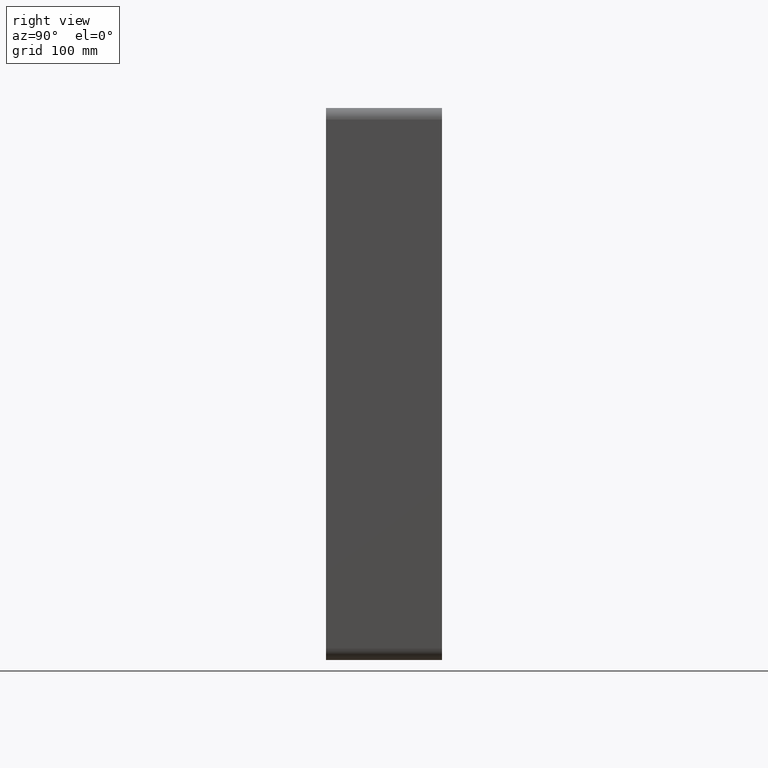
[diagram: clean part render]
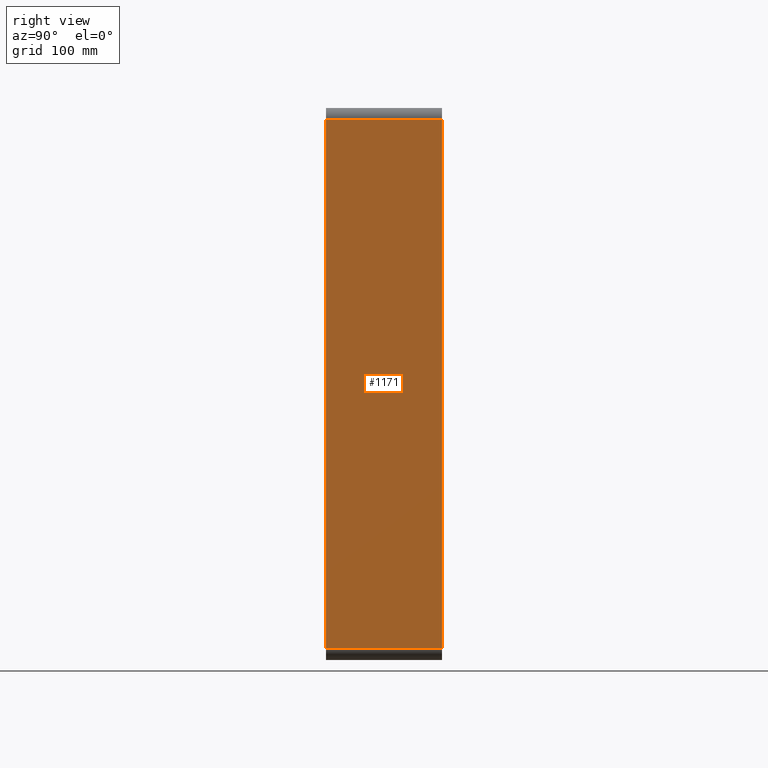
[diagram: same view with one face highlighted and labeled with its STEP entity id]
A machine part, right view. The second image highlights one B-rep face of the part: STEP entity #1171.
In plain terms, the highlighted planar face has unit normal (1, 0, 0).
Its self-contained STEP definition (entity closure, byte-faithful):
#314=CARTESIAN_POINT('',(200.75000000000003,-3.0,-227.99999999999997));
#315=VERTEX_POINT('',#314);
#323=CARTESIAN_POINT('',(200.75000000000003,-3.0,228.00000000000006));
#324=VERTEX_POINT('',#323);
#325=CARTESIAN_POINT('',(200.75000000000003,-3.0,-227.99999999999994));
#326=DIRECTION('',(0.0,0.0,1.0));
#327=VECTOR('',#326,456.0);
#328=LINE('',#325,#327);
#329=EDGE_CURVE('',#315,#324,#328,.T.);
#825=CARTESIAN_POINT('',(200.75000000000003,97.0,228.00000000000006));
#826=VERTEX_POINT('',#825);
#834=CARTESIAN_POINT('',(200.75000000000003,97.0,-227.99999999999997));
#835=VERTEX_POINT('',#834);
#836=CARTESIAN_POINT('',(200.75000000000003,97.0,228.00000000000006));
#837=DIRECTION('',(0.0,0.0,-1.0));
#838=VECTOR('',#837,456.0);
#839=LINE('',#836,#838);
#840=EDGE_CURVE('',#826,#835,#839,.T.);
#1069=CARTESIAN_POINT('',(200.75000000000003,97.0,-227.99999999999997));
#1070=DIRECTION('',(0.0,-1.0,0.0));
#1071=VECTOR('',#1070,100.0);
#1072=LINE('',#1069,#1071);
#1073=EDGE_CURVE('',#835,#315,#1072,.T.);
#1086=CARTESIAN_POINT('',(200.75000000000003,-3.0,228.00000000000006));
#1087=DIRECTION('',(0.0,1.0,0.0));
#1088=VECTOR('',#1087,100.0);
#1089=LINE('',#1086,#1088);
#1090=EDGE_CURVE('',#324,#826,#1089,.T.);
#1160=CARTESIAN_POINT('',(200.75000000000003,0.0,238.00000000000006));
#1161=DIRECTION('',(1.0,0.0,0.0));
#1162=DIRECTION('',(0.0,0.0,-1.0));
#1163=AXIS2_PLACEMENT_3D('',#1160,#1161,#1162);
#1164=PLANE('',#1163);
#1165=ORIENTED_EDGE('',*,*,#1073,.F.);
#1166=ORIENTED_EDGE('',*,*,#840,.F.);
#1167=ORIENTED_EDGE('',*,*,#1090,.F.);
#1168=ORIENTED_EDGE('',*,*,#329,.F.);
#1169=EDGE_LOOP('',(#1165,#1166,#1167,#1168));
#1170=FACE_OUTER_BOUND('',#1169,.T.);
#1171=ADVANCED_FACE('',(#1170),#1164,.T.);